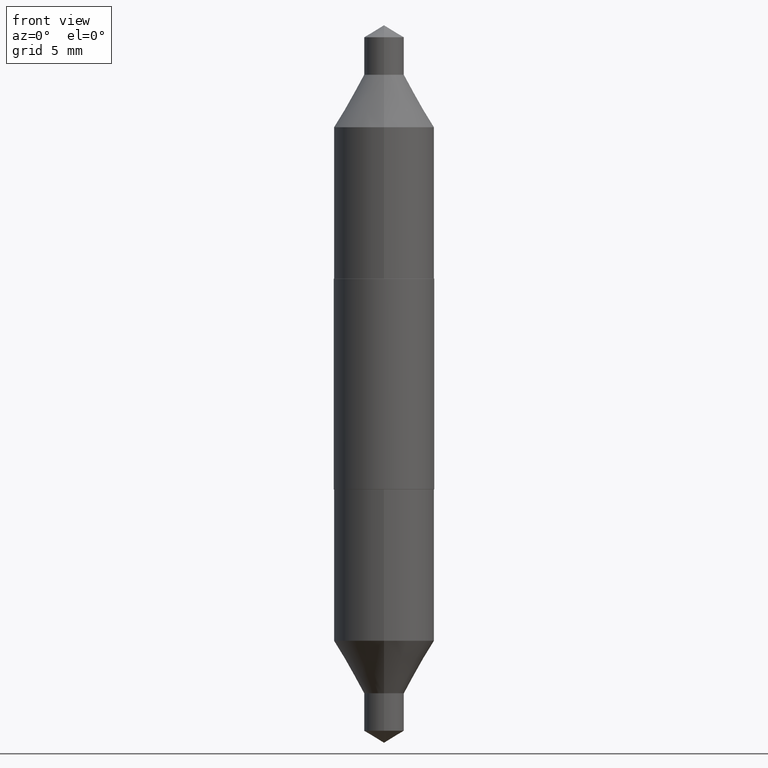
[diagram: clean part render]
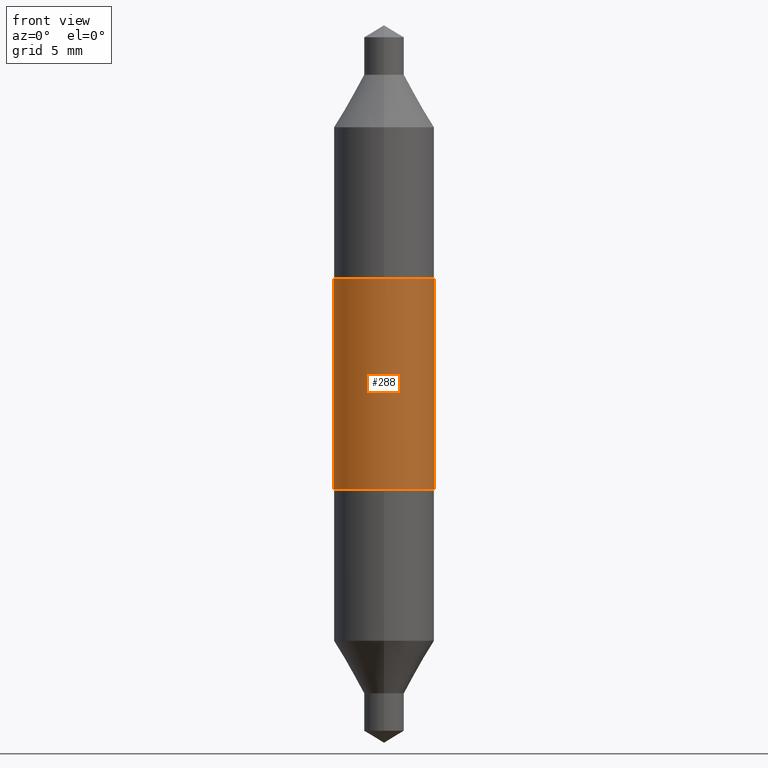
[diagram: same view with one face highlighted and labeled with its STEP entity id]
A machine part, front view. The second image highlights one B-rep face of the part: STEP entity #288.
In plain terms, the highlighted cylindrical surface (partial cylindrical patch) has radius 3.1496 mm, axis along (-0, 0, 1).
Its self-contained STEP definition (entity closure, byte-faithful):
#9 = VERTEX_POINT ( 'NONE', #26 ) ;
#14 = EDGE_CURVE ( 'NONE', #177, #545, #406, .T. ) ;
#26 = CARTESIAN_POINT ( 'NONE',  ( -0.1240000000000000685, 8.810729923425244214E-16, 0.2595000000000000084 ) ) ;
#41 = EDGE_LOOP ( 'NONE', ( #302, #689, #278, #273 ) ) ;
#45 = LINE ( 'NONE', #584, #125 ) ;
#73 = DIRECTION ( 'NONE',  ( 1.000000000000000000, -6.982962677686267499E-15, 0.000000000000000000 ) ) ;
#75 = VECTOR ( 'NONE', #129, 39.37007874015748143 ) ;
#82 = DIRECTION ( 'NONE',  ( -2.445468806185136597E-29, 3.491481338843145583E-15, 1.000000000000000000 ) ) ;
#100 = DIRECTION ( 'NONE',  ( 1.000000000000000000, -6.982962677686266711E-15, 4.876176775795935793E-29 ) ) ;
#111 = AXIS2_PLACEMENT_3D ( 'NONE', #232, #82, #73 ) ;
#125 = VECTOR ( 'NONE', #362, 39.37007874015748143 ) ;
#126 = CARTESIAN_POINT ( 'NONE',  ( -0.1240000000000000407, -2.496641508727166066E-17, -0.2595000000000000084 ) ) ;
#129 = DIRECTION ( 'NONE',  ( -2.445468806185136877E-29, 3.491481338843145188E-15, 1.000000000000000000 ) ) ;
#139 = EDGE_CURVE ( 'NONE', #615, #177, #332, .T. ) ;
#158 = CYLINDRICAL_SURFACE ( 'NONE', #270, 0.1240000000000000269 ) ;
#177 = VERTEX_POINT ( 'NONE', #363 ) ;
#183 = DIRECTION ( 'NONE',  ( -2.445468806185136597E-29, 3.491481338843145583E-15, 1.000000000000000000 ) ) ;
#190 = CARTESIAN_POINT ( 'NONE',  ( 0.1240000000000000269, -8.658873720330972259E-16, 6.046459201986962037E-30 ) ) ;
#198 = CARTESIAN_POINT ( 'NONE',  ( 6.345991552050428931E-30, -9.060394074297962454E-16, -0.2595000000000000084 ) ) ;
#211 = FACE_OUTER_BOUND ( 'NONE', #41, .T. ) ;
#232 = CARTESIAN_POINT ( 'NONE',  ( -6.345991552050428931E-30, 9.060394074297962454E-16, 0.2595000000000000084 ) ) ;
#270 = AXIS2_PLACEMENT_3D ( 'NONE', #367, #586, #100 ) ;
#273 = ORIENTED_EDGE ( 'NONE', *, *, #590, .F. ) ;
#278 = ORIENTED_EDGE ( 'NONE', *, *, #14, .T. ) ;
#288 = ADVANCED_FACE ( 'NONE', ( #211 ), #158, .T. ) ;
#302 = ORIENTED_EDGE ( 'NONE', *, *, #629, .F. ) ;
#332 = CIRCLE ( 'NONE', #377, 0.1240000000000000407 ) ;
#362 = DIRECTION ( 'NONE',  ( -2.445468806185136877E-29, 3.491481338843145188E-15, 1.000000000000000000 ) ) ;
#363 = CARTESIAN_POINT ( 'NONE',  ( 0.1240000000000000407, -1.771926779462893570E-15, -0.2595000000000000084 ) ) ;
#367 = CARTESIAN_POINT ( 'NONE',  ( 0.000000000000000000, 0.000000000000000000, 0.000000000000000000 ) ) ;
#377 = AXIS2_PLACEMENT_3D ( 'NONE', #198, #183, #392 ) ;
#392 = DIRECTION ( 'NONE',  ( 1.000000000000000000, -6.982962677686267499E-15, 0.000000000000000000 ) ) ;
#406 = LINE ( 'NONE', #190, #75 ) ;
#509 = CARTESIAN_POINT ( 'NONE',  ( 0.1240000000000000407, 4.015203539669884070E-17, 0.2595000000000000084 ) ) ;
#545 = VERTEX_POINT ( 'NONE', #509 ) ;
#584 = CARTESIAN_POINT ( 'NONE',  ( -0.1240000000000000269, 8.810729923425244214E-16, -6.099479511916084548E-30 ) ) ;
#586 = DIRECTION ( 'NONE',  ( -2.445468806185136597E-29, 3.491481338843145583E-15, 1.000000000000000000 ) ) ;
#590 = EDGE_CURVE ( 'NONE', #9, #545, #622, .T. ) ;
#615 = VERTEX_POINT ( 'NONE', #126 ) ;
#622 = CIRCLE ( 'NONE', #111, 0.1240000000000000407 ) ;
#629 = EDGE_CURVE ( 'NONE', #615, #9, #45, .T. ) ;
#689 = ORIENTED_EDGE ( 'NONE', *, *, #139, .T. ) ;